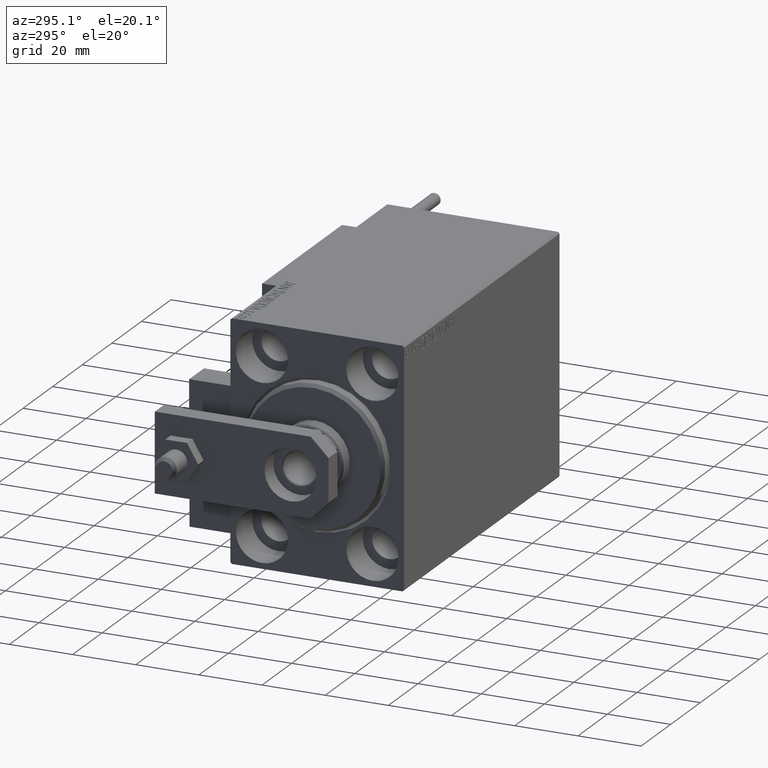
[diagram: clean part render]
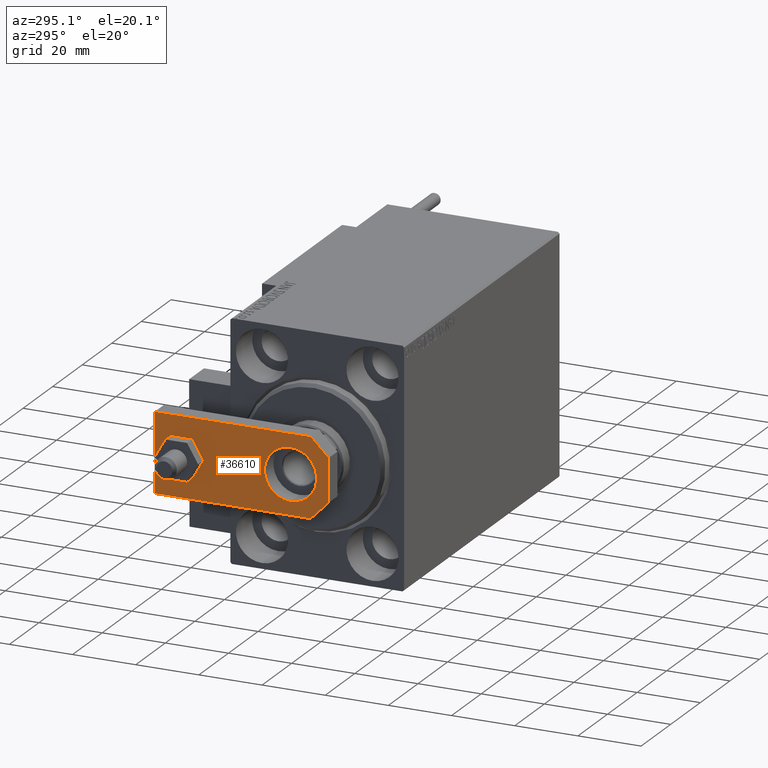
[diagram: same view with one face highlighted and labeled with its STEP entity id]
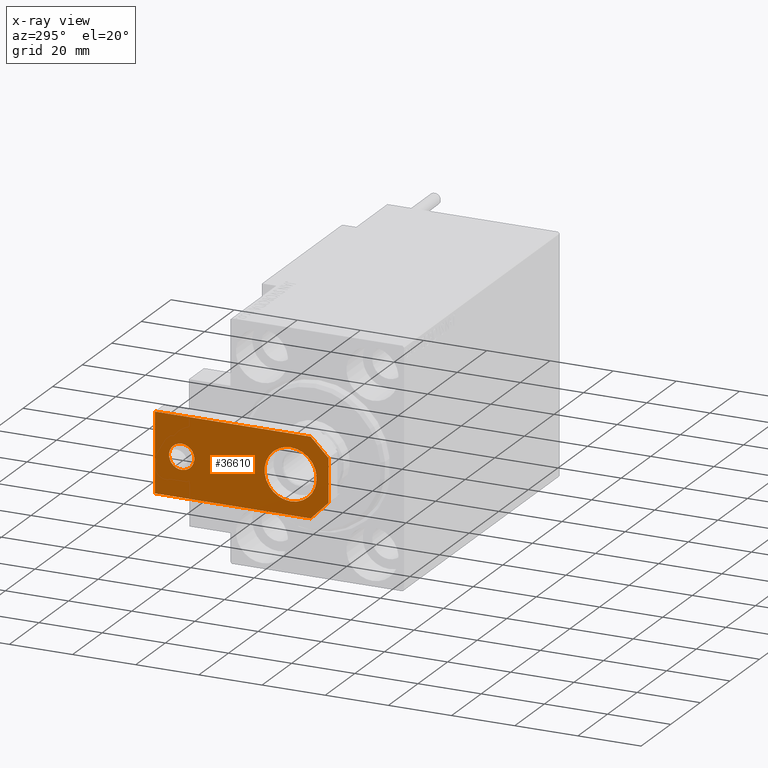
[diagram: x-ray of the same camera — body ghosted, the highlighted face saturated]
A machine part, auxiliary view. The second image highlights one B-rep face of the part: STEP entity #36610.
The next image is the same camera in x-ray: the body ghosted, the highlighted face saturated — about 0% of this face is hidden behind the body in this view.
In plain terms, the highlighted planar face has unit normal (-1, 0, 0).
Its self-contained STEP definition (entity closure, byte-faithful):
#746 = CARTESIAN_POINT ( 'NONE',  ( -12.49999999999999822, 55.00000000000000000, 6.000000000000000000 ) ) ;
#2183 = CARTESIAN_POINT ( 'NONE',  ( -4.000000000000000888, 46.50000000000000000, 6.000000000000000000 ) ) ;
#2238 = DIRECTION ( 'NONE',  ( 0.7071067811865483499, 0.7071067811865465735, -0.000000000000000000 ) ) ;
#2494 = CARTESIAN_POINT ( 'NONE',  ( 12.50000000000000000, 55.00000000000000000, 6.000000000000000000 ) ) ;
#4392 = AXIS2_PLACEMENT_3D ( 'NONE', #22989, #11622, #31308 ) ;
#6929 = ORIENTED_EDGE ( 'NONE', *, *, #19969, .T. ) ;
#7382 = EDGE_CURVE ( 'NONE', #41495, #24185, #34631, .T. ) ;
#8457 = ORIENTED_EDGE ( 'NONE', *, *, #43343, .T. ) ;
#8511 = CIRCLE ( 'NONE', #27057, 8.250000000000000000 ) ;
#9424 = DIRECTION ( 'NONE',  ( 1.000000000000000000, 0.000000000000000000, 0.000000000000000000 ) ) ;
#9561 = CARTESIAN_POINT ( 'NONE',  ( 3.419999999999990603, -3.419999999999999485, 6.000000000000000000 ) ) ;
#9580 = ORIENTED_EDGE ( 'NONE', *, *, #28360, .F. ) ;
#11082 = CARTESIAN_POINT ( 'NONE',  ( -12.50000000000000355, 5.660000000000005471, 6.000000000000000000 ) ) ;
#11443 = DIRECTION ( 'NONE',  ( 0.7071067811865467956, -0.7071067811865483499, 0.000000000000000000 ) ) ;
#11622 = DIRECTION ( 'NONE',  ( 0.000000000000000000, 0.000000000000000000, 1.000000000000000000 ) ) ;
#11698 = CARTESIAN_POINT ( 'NONE',  ( -3.420000000000013696, -3.420000000000006146, 6.000000000000000000 ) ) ;
#12961 = PLANE ( 'NONE',  #45009 ) ;
#13045 = VERTEX_POINT ( 'NONE', #23529 ) ;
#13214 = VERTEX_POINT ( 'NONE', #11082 ) ;
#13327 = CARTESIAN_POINT ( 'NONE',  ( -9.629649721936179265E-32, 11.99999999999999645, 6.000000000000000000 ) ) ;
#14096 = VECTOR ( 'NONE', #11443, 1000.000000000000000 ) ;
#15240 = FACE_BOUND ( 'NONE', #22020, .T. ) ;
#16964 = LINE ( 'NONE', #2494, #33685 ) ;
#17467 = CARTESIAN_POINT ( 'NONE',  ( 12.50000000000000355, 4.814824860968089633E-32, 6.000000000000000000 ) ) ;
#17802 = EDGE_CURVE ( 'NONE', #48244, #13214, #34113, .T. ) ;
#17991 = EDGE_LOOP ( 'NONE', ( #44678, #9580 ) ) ;
#19280 = EDGE_CURVE ( 'NONE', #32746, #37126, #34582, .T. ) ;
#19534 = ORIENTED_EDGE ( 'NONE', *, *, #26395, .F. ) ;
#19969 = EDGE_CURVE ( 'NONE', #13214, #32746, #46026, .T. ) ;
#20147 = AXIS2_PLACEMENT_3D ( 'NONE', #44919, #45663, #21951 ) ;
#20778 = CARTESIAN_POINT ( 'NONE',  ( 0.000000000000000000, 0.000000000000000000, 6.000000000000000000 ) ) ;
#20943 = ORIENTED_EDGE ( 'NONE', *, *, #33065, .F. ) ;
#21331 = CARTESIAN_POINT ( 'NONE',  ( 12.50000000000000000, 55.00000000000000000, 6.000000000000000000 ) ) ;
#21951 = DIRECTION ( 'NONE',  ( 1.000000000000000000, 0.000000000000000000, 0.000000000000000000 ) ) ;
#22020 = EDGE_LOOP ( 'NONE', ( #20943, #19534 ) ) ;
#22112 = CARTESIAN_POINT ( 'NONE',  ( -6.840000000000012292, 4.814824860968089633E-32, 6.000000000000000000 ) ) ;
#22989 = CARTESIAN_POINT ( 'NONE',  ( -1.432611055310774642E-16, 46.50000000000000000, 6.000000000000000000 ) ) ;
#23529 = CARTESIAN_POINT ( 'NONE',  ( -8.250000000000000000, 11.99999999999999645, 6.000000000000000000 ) ) ;
#24185 = VERTEX_POINT ( 'NONE', #28496 ) ;
#25324 = VECTOR ( 'NONE', #30802, 1000.000000000000000 ) ;
#26395 = EDGE_CURVE ( 'NONE', #29097, #13045, #8511, .T. ) ;
#26534 = VECTOR ( 'NONE', #28059, 1000.000000000000000 ) ;
#26717 = ORIENTED_EDGE ( 'NONE', *, *, #48457, .T. ) ;
#26782 = VERTEX_POINT ( 'NONE', #21331 ) ;
#27057 = AXIS2_PLACEMENT_3D ( 'NONE', #13327, #32012, #36030 ) ;
#28059 = DIRECTION ( 'NONE',  ( -6.308085367188389994E-17, 1.000000000000000000, 0.000000000000000000 ) ) ;
#28360 = EDGE_CURVE ( 'NONE', #24185, #41495, #46413, .T. ) ;
#28496 = CARTESIAN_POINT ( 'NONE',  ( 4.000000000000000888, 46.50000000000000000, 6.000000000000000000 ) ) ;
#28561 = LINE ( 'NONE', #17467, #26534 ) ;
#29097 = VERTEX_POINT ( 'NONE', #45599 ) ;
#29657 = ORIENTED_EDGE ( 'NONE', *, *, #36100, .T. ) ;
#30058 = CARTESIAN_POINT ( 'NONE',  ( -12.50000000000000355, 4.814824860968089633E-32, 6.000000000000000000 ) ) ;
#30794 = DIRECTION ( 'NONE',  ( 1.000000000000000000, 0.000000000000000000, 0.000000000000000000 ) ) ;
#30802 = DIRECTION ( 'NONE',  ( 1.000000000000000000, 0.000000000000000000, 0.000000000000000000 ) ) ;
#31050 = CARTESIAN_POINT ( 'NONE',  ( -9.629649721936179265E-32, 11.99999999999999645, 6.000000000000000000 ) ) ;
#31308 = DIRECTION ( 'NONE',  ( 1.000000000000000000, 0.000000000000000000, 0.000000000000000000 ) ) ;
#31896 = DIRECTION ( 'NONE',  ( -0.000000000000000000, 0.000000000000000000, 1.000000000000000000 ) ) ;
#32012 = DIRECTION ( 'NONE',  ( 0.000000000000000000, 0.000000000000000000, 1.000000000000000000 ) ) ;
#32524 = VERTEX_POINT ( 'NONE', #49669 ) ;
#32746 = VERTEX_POINT ( 'NONE', #22112 ) ;
#33065 = EDGE_CURVE ( 'NONE', #13045, #29097, #44896, .T. ) ;
#33685 = VECTOR ( 'NONE', #47514, 1000.000000000000000 ) ;
#33970 = VECTOR ( 'NONE', #2238, 1000.000000000000114 ) ;
#34113 = LINE ( 'NONE', #37884, #49432 ) ;
#34582 = LINE ( 'NONE', #30058, #25324 ) ;
#34631 = CIRCLE ( 'NONE', #20147, 4.000000000000000888 ) ;
#36030 = DIRECTION ( 'NONE',  ( 1.000000000000000000, 0.000000000000000000, 0.000000000000000000 ) ) ;
#36100 = EDGE_CURVE ( 'NONE', #26782, #48244, #16964, .T. ) ;
#36610 = ADVANCED_FACE ( 'NONE', ( #41744, #49820, #15240 ), #12961, .T. ) ;
#37126 = VERTEX_POINT ( 'NONE', #43937 ) ;
#37884 = CARTESIAN_POINT ( 'NONE',  ( -12.49999999999999822, 55.00000000000000000, 6.000000000000000000 ) ) ;
#38059 = EDGE_LOOP ( 'NONE', ( #49743, #6929, #44886, #26717, #8457, #29657 ) ) ;
#38849 = DIRECTION ( 'NONE',  ( 0.000000000000000000, 0.000000000000000000, 1.000000000000000000 ) ) ;
#41495 = VERTEX_POINT ( 'NONE', #2183 ) ;
#41685 = DIRECTION ( 'NONE',  ( -9.462128050782584375E-17, -1.000000000000000000, 0.000000000000000000 ) ) ;
#41744 = FACE_BOUND ( 'NONE', #17991, .T. ) ;
#43343 = EDGE_CURVE ( 'NONE', #32524, #26782, #28561, .T. ) ;
#43937 = CARTESIAN_POINT ( 'NONE',  ( 6.839999999999998970, 4.814824860968089633E-32, 6.000000000000000000 ) ) ;
#44142 = LINE ( 'NONE', #9561, #33970 ) ;
#44678 = ORIENTED_EDGE ( 'NONE', *, *, #7382, .F. ) ;
#44886 = ORIENTED_EDGE ( 'NONE', *, *, #19280, .T. ) ;
#44896 = CIRCLE ( 'NONE', #49718, 8.250000000000000000 ) ;
#44919 = CARTESIAN_POINT ( 'NONE',  ( -1.432611055310774642E-16, 46.50000000000000000, 6.000000000000000000 ) ) ;
#45009 = AXIS2_PLACEMENT_3D ( 'NONE', #20778, #31896, #9424 ) ;
#45599 = CARTESIAN_POINT ( 'NONE',  ( 8.250000000000000000, 11.99999999999999822, 6.000000000000000000 ) ) ;
#45663 = DIRECTION ( 'NONE',  ( 0.000000000000000000, 0.000000000000000000, 1.000000000000000000 ) ) ;
#46026 = LINE ( 'NONE', #11698, #14096 ) ;
#46413 = CIRCLE ( 'NONE', #4392, 4.000000000000000888 ) ;
#47514 = DIRECTION ( 'NONE',  ( -1.000000000000000000, 0.000000000000000000, 0.000000000000000000 ) ) ;
#48244 = VERTEX_POINT ( 'NONE', #746 ) ;
#48457 = EDGE_CURVE ( 'NONE', #37126, #32524, #44142, .T. ) ;
#49432 = VECTOR ( 'NONE', #41685, 1000.000000000000000 ) ;
#49669 = CARTESIAN_POINT ( 'NONE',  ( 12.50000000000000355, 5.659999999999991260, 6.000000000000000000 ) ) ;
#49718 = AXIS2_PLACEMENT_3D ( 'NONE', #31050, #38849, #30794 ) ;
#49743 = ORIENTED_EDGE ( 'NONE', *, *, #17802, .T. ) ;
#49820 = FACE_OUTER_BOUND ( 'NONE', #38059, .T. ) ;